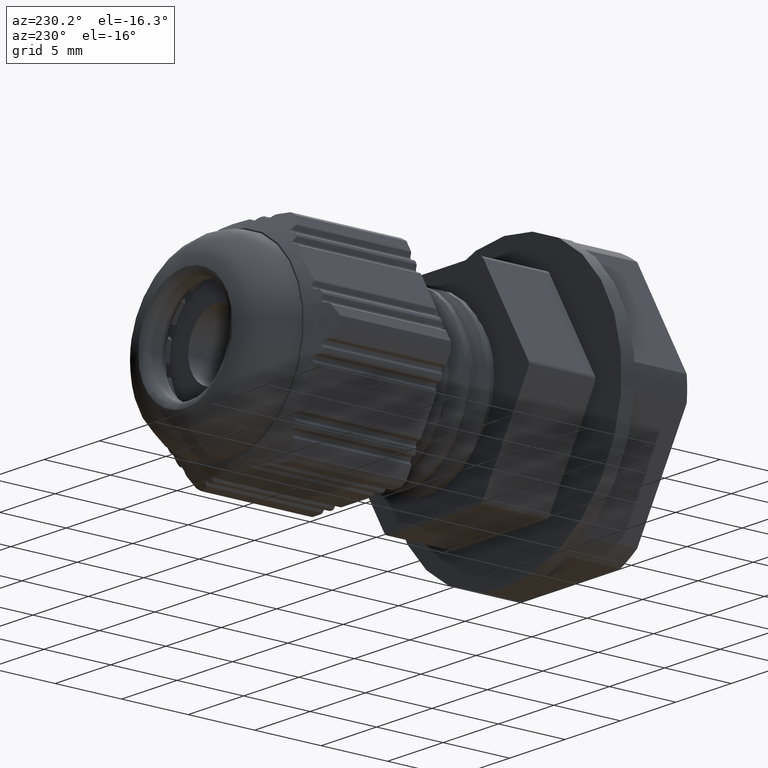
[diagram: clean part render]
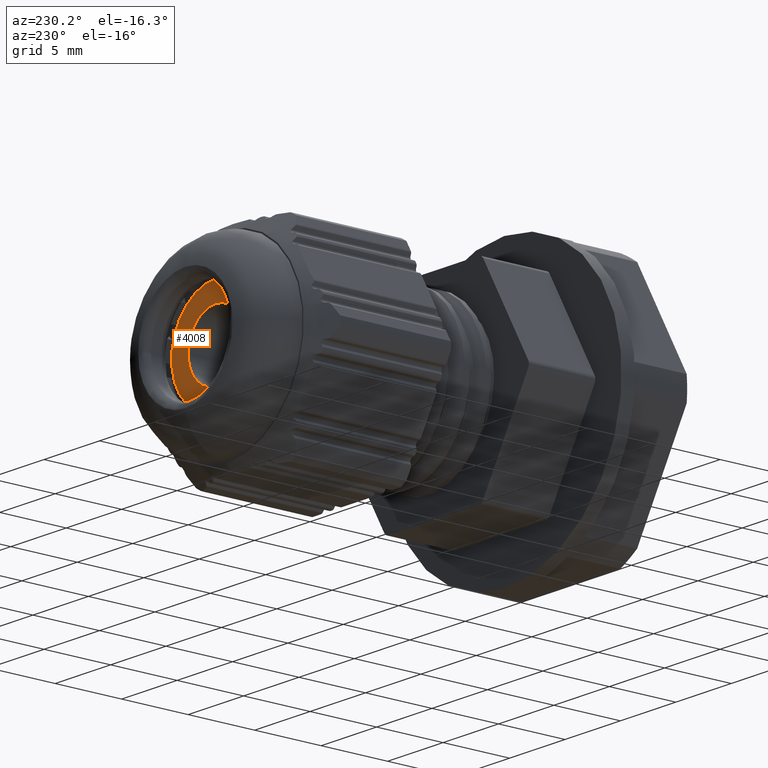
[diagram: same view with one face highlighted and labeled with its STEP entity id]
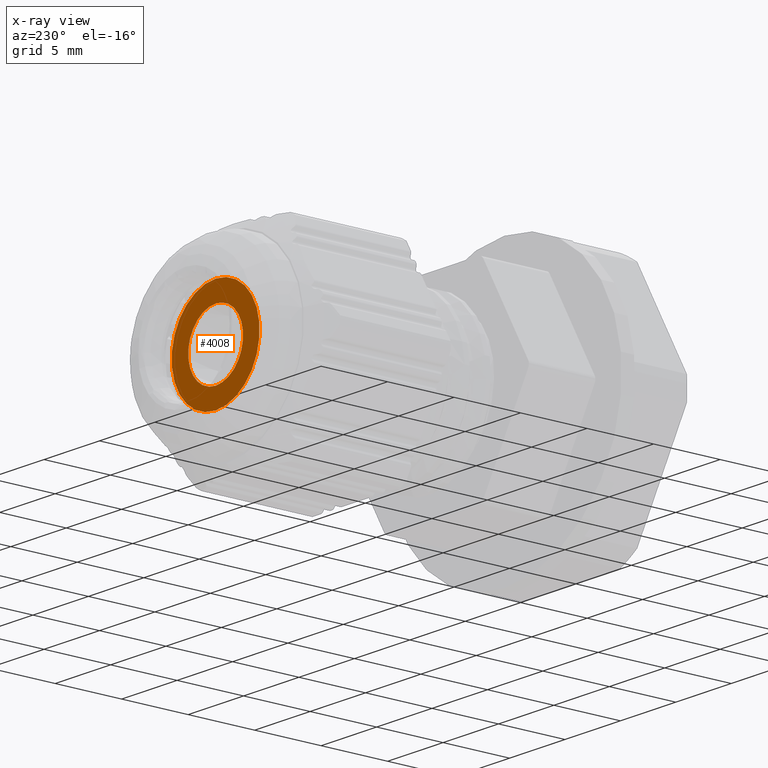
[diagram: x-ray of the same camera — body ghosted, the highlighted face saturated]
A machine part, auxiliary view. The second image highlights one B-rep face of the part: STEP entity #4008.
The next image is the same camera in x-ray: the body ghosted, the highlighted face saturated — about 0% of this face is hidden behind the body in this view.
In plain terms, the highlighted planar face has unit normal (0, 1, 0).
Its self-contained STEP definition (entity closure, byte-faithful):
#91 = AXIS2_PLACEMENT_3D ( 'NONE', #10831, #10837, #10832 ) ;
#95 = CIRCLE ( 'NONE', #91, 3.966997991871871000 ) ;
#190 = CIRCLE ( 'NONE', #191, 3.966997991871871000 ) ;
#191 = AXIS2_PLACEMENT_3D ( 'NONE', #4674, #4682, #4683 ) ;
#249 = AXIS2_PLACEMENT_3D ( 'NONE', #5853, #5886, #5878 ) ;
#285 = CIRCLE ( 'NONE', #249, 2.475534951944448700 ) ;
#801 = CIRCLE ( 'NONE', #823, 2.475534951944448700 ) ;
#823 = AXIS2_PLACEMENT_3D ( 'NONE', #8222, #8232, #8235 ) ;
#900 = EDGE_LOOP ( 'NONE', ( #4233, #4285 ) ) ;
#946 = EDGE_LOOP ( 'NONE', ( #4303, #4245 ) ) ;
#1937 = FACE_BOUND ( 'NONE', #900, .T. ) ;
#2139 = FACE_OUTER_BOUND ( 'NONE', #946, .T. ) ;
#2149 = PLANE ( 'NONE',  #4846 ) ;
#2205 = CARTESIAN_POINT ( 'NONE',  ( 0.0000000000000000000, 12.93372162396507200, 0.0000000000000000000 ) ) ;
#2226 = DIRECTION ( 'NONE',  ( 0.0000000000000000000, 1.000000000000000000, 0.0000000000000000000 ) ) ;
#2234 = DIRECTION ( 'NONE',  ( 0.0000000000000000000, -0.0000000000000000000, 1.000000000000000000 ) ) ;
#2801 = CARTESIAN_POINT ( 'NONE',  ( 4.866258496761947200E-016, 12.93372162393779900, 3.966997991871871000 ) ) ;
#2805 = CARTESIAN_POINT ( 'NONE',  ( 0.0000000000000000000, 12.93372162393779900, -3.966997991871871000 ) ) ;
#2873 = CARTESIAN_POINT ( 'NONE',  ( 3.233892993961856400E-016, 12.93372162393779900, 2.475534951944448700 ) ) ;
#2883 = CARTESIAN_POINT ( 'NONE',  ( 0.0000000000000000000, 12.93372162393779900, -2.475534951944448700 ) ) ;
#3127 = EDGE_CURVE ( 'NONE', #10007, #10014, #190, .T. ) ;
#3185 = EDGE_CURVE ( 'NONE', #10048, #10052, #285, .T. ) ;
#3737 = EDGE_CURVE ( 'NONE', #10052, #10048, #801, .T. ) ;
#3754 = EDGE_CURVE ( 'NONE', #10014, #10007, #95, .T. ) ;
#4008 = ADVANCED_FACE ( 'NONE', ( #1937, #2139 ), #2149, .T. ) ;
#4233 = ORIENTED_EDGE ( 'NONE', *, *, #3737, .T. ) ;
#4245 = ORIENTED_EDGE ( 'NONE', *, *, #3127, .T. ) ;
#4285 = ORIENTED_EDGE ( 'NONE', *, *, #3185, .T. ) ;
#4303 = ORIENTED_EDGE ( 'NONE', *, *, #3754, .T. ) ;
#4674 = CARTESIAN_POINT ( 'NONE',  ( 0.0000000000000000000, 12.93372162393779900, 0.0000000000000000000 ) ) ;
#4682 = DIRECTION ( 'NONE',  ( -0.0000000000000000000, 1.000000000000000000, -0.0000000000000000000 ) ) ;
#4683 = DIRECTION ( 'NONE',  ( 0.0000000000000000000, 0.0000000000000000000, -1.000000000000000000 ) ) ;
#4846 = AXIS2_PLACEMENT_3D ( 'NONE', #2205, #2226, #2234 ) ;
#5853 = CARTESIAN_POINT ( 'NONE',  ( 0.0000000000000000000, 12.93372162393779900, 0.0000000000000000000 ) ) ;
#5878 = DIRECTION ( 'NONE',  ( 0.0000000000000000000, 0.0000000000000000000, -1.000000000000000000 ) ) ;
#5886 = DIRECTION ( 'NONE',  ( 0.0000000000000000000, -1.000000000000000000, 0.0000000000000000000 ) ) ;
#8222 = CARTESIAN_POINT ( 'NONE',  ( 0.0000000000000000000, 12.93372162393779900, 0.0000000000000000000 ) ) ;
#8232 = DIRECTION ( 'NONE',  ( 0.0000000000000000000, -1.000000000000000000, 0.0000000000000000000 ) ) ;
#8235 = DIRECTION ( 'NONE',  ( 0.0000000000000000000, 0.0000000000000000000, -1.000000000000000000 ) ) ;
#10007 = VERTEX_POINT ( 'NONE', #2801 ) ;
#10014 = VERTEX_POINT ( 'NONE', #2805 ) ;
#10048 = VERTEX_POINT ( 'NONE', #2873 ) ;
#10052 = VERTEX_POINT ( 'NONE', #2883 ) ;
#10831 = CARTESIAN_POINT ( 'NONE',  ( 0.0000000000000000000, 12.93372162393779900, 0.0000000000000000000 ) ) ;
#10832 = DIRECTION ( 'NONE',  ( 0.0000000000000000000, 0.0000000000000000000, -1.000000000000000000 ) ) ;
#10837 = DIRECTION ( 'NONE',  ( -0.0000000000000000000, 1.000000000000000000, -0.0000000000000000000 ) ) ;